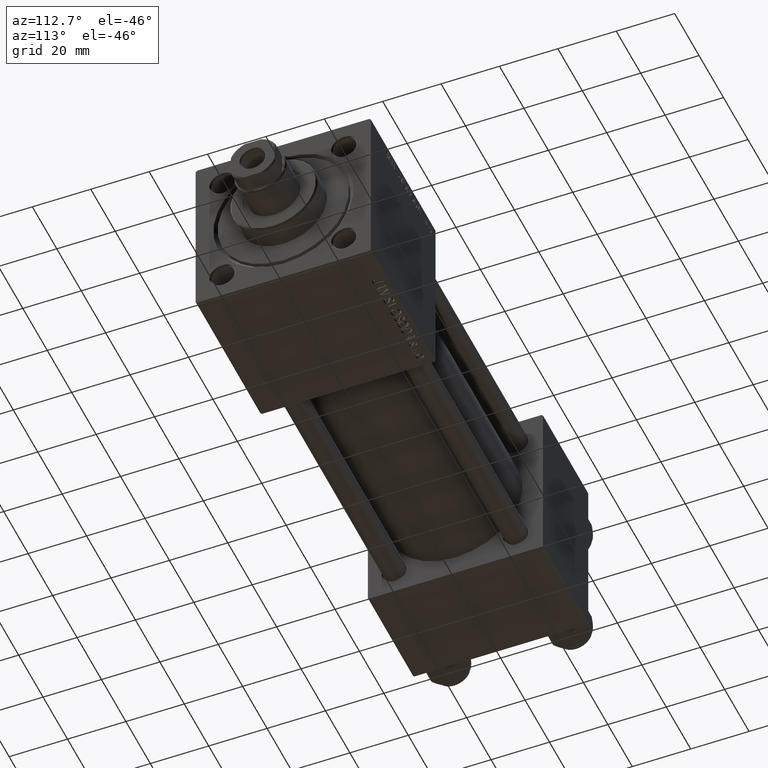
[diagram: clean part render]
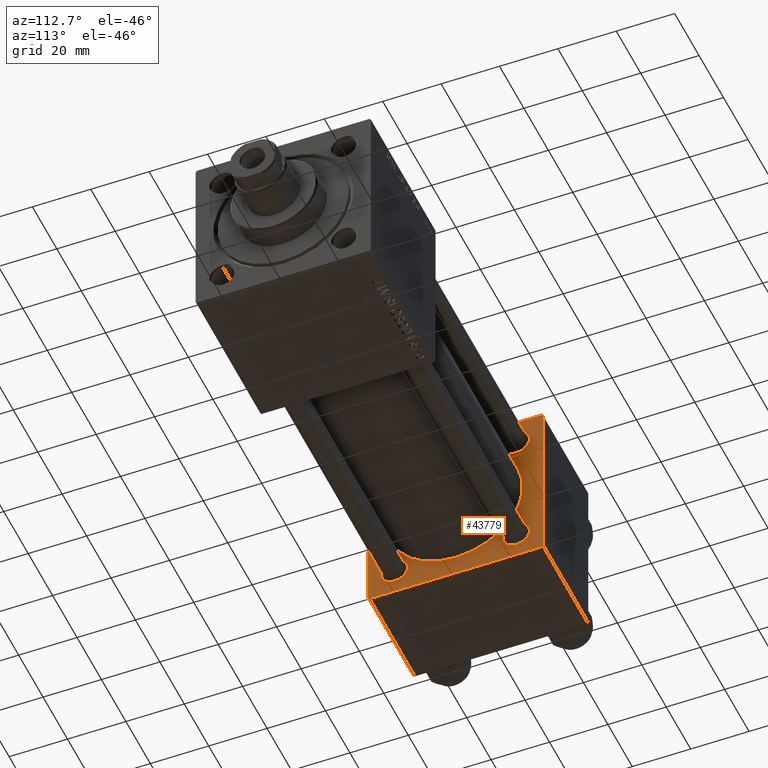
[diagram: same view with one face highlighted and labeled with its STEP entity id]
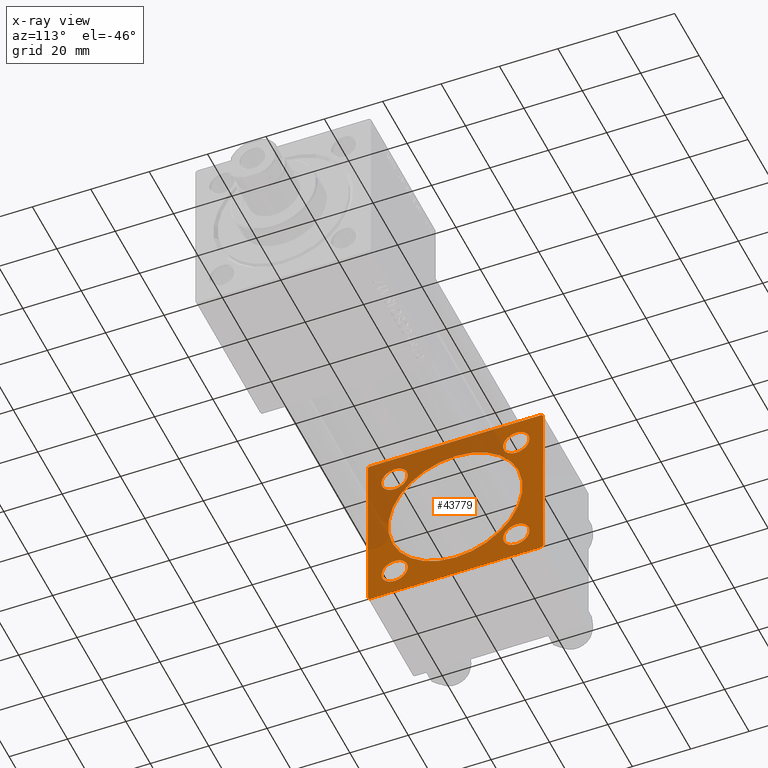
[diagram: x-ray of the same camera — body ghosted, the highlighted face saturated]
A machine part, auxiliary view. The second image highlights one B-rep face of the part: STEP entity #43779.
The next image is the same camera in x-ray: the body ghosted, the highlighted face saturated — about 36% of this face is hidden behind the body in this view.
In plain terms, the highlighted planar face has unit normal (-1, 0, 0).
Its self-contained STEP definition (entity closure, byte-faithful):
#927 = VERTEX_POINT ( 'NONE', #18639 ) ;
#1136 = CIRCLE ( 'NONE', #18986, 4.500000000000003553 ) ;
#1284 = DIRECTION ( 'NONE',  ( -0.000000000000000000, 0.7071067811865574537, 0.7071067811865376918 ) ) ;
#1488 = LINE ( 'NONE', #36266, #43400 ) ;
#1565 = FACE_OUTER_BOUND ( 'NONE', #16104, .T. ) ;
#1775 = DIRECTION ( 'NONE',  ( 0.000000000000000000, -1.000000000000000000, -1.156482317317871725E-16 ) ) ;
#2113 = VECTOR ( 'NONE', #13641, 1000.000000000000114 ) ;
#2176 = EDGE_CURVE ( 'NONE', #12660, #927, #2275, .T. ) ;
#2275 = LINE ( 'NONE', #17536, #17097 ) ;
#2717 = DIRECTION ( 'NONE',  ( 0.000000000000000000, 0.7071067811865474617, -0.7071067811865474617 ) ) ;
#3640 = VECTOR ( 'NONE', #45268, 1000.000000000000000 ) ;
#3833 = ORIENTED_EDGE ( 'NONE', *, *, #24474, .T. ) ;
#4838 = VERTEX_POINT ( 'NONE', #44101 ) ;
#5423 = EDGE_CURVE ( 'NONE', #29199, #39441, #39070, .T. ) ;
#5932 = DIRECTION ( 'NONE',  ( -1.000000000000000000, 0.000000000000000000, -0.000000000000000000 ) ) ;
#5941 = VERTEX_POINT ( 'NONE', #10081 ) ;
#6103 = CIRCLE ( 'NONE', #34474, 4.500000000000003553 ) ;
#6738 = ORIENTED_EDGE ( 'NONE', *, *, #9941, .T. ) ;
#6885 = DIRECTION ( 'NONE',  ( 1.000000000000000000, -0.000000000000000000, 0.000000000000000000 ) ) ;
#7132 = CARTESIAN_POINT ( 'NONE',  ( 37.00000000000000000, 29.99999999999999289, 29.50000000000000000 ) ) ;
#7161 = DIRECTION ( 'NONE',  ( 0.000000000000000000, 0.000000000000000000, -1.000000000000000000 ) ) ;
#7233 = ORIENTED_EDGE ( 'NONE', *, *, #28887, .T. ) ;
#7256 = DIRECTION ( 'NONE',  ( -1.000000000000000000, 0.000000000000000000, -0.000000000000000000 ) ) ;
#7270 = DIRECTION ( 'NONE',  ( -1.000000000000000000, 0.000000000000000000, -0.000000000000000000 ) ) ;
#7397 = CARTESIAN_POINT ( 'NONE',  ( 37.00000000000000000, -30.00000000000000000, 29.49999999999999289 ) ) ;
#7697 = DIRECTION ( 'NONE',  ( -1.000000000000000000, 0.000000000000000000, -0.000000000000000000 ) ) ;
#7887 = VECTOR ( 'NONE', #50105, 1000.000000000000000 ) ;
#7968 = ORIENTED_EDGE ( 'NONE', *, *, #40913, .F. ) ;
#8351 = CARTESIAN_POINT ( 'NONE',  ( 37.00000000000000000, -20.84999999999999076, 20.85000000000000497 ) ) ;
#8683 = VERTEX_POINT ( 'NONE', #47645 ) ;
#8855 = DIRECTION ( 'NONE',  ( -1.000000000000000000, 0.000000000000000000, -0.000000000000000000 ) ) ;
#8946 = FACE_BOUND ( 'NONE', #13303, .T. ) ;
#9249 = VERTEX_POINT ( 'NONE', #14420 ) ;
#9458 = ORIENTED_EDGE ( 'NONE', *, *, #16883, .T. ) ;
#9941 = EDGE_CURVE ( 'NONE', #12660, #14444, #27717, .T. ) ;
#10081 = CARTESIAN_POINT ( 'NONE',  ( 37.00000000000000711, -2.602085213965210642E-15, 23.00000000000000000 ) ) ;
#10226 = CARTESIAN_POINT ( 'NONE',  ( 37.00000000000000000, 29.99999999999999289, 30.00000000000000000 ) ) ;
#10707 = LINE ( 'NONE', #46254, #19433 ) ;
#11995 = EDGE_CURVE ( 'NONE', #29523, #8683, #45230, .T. ) ;
#12387 = CIRCLE ( 'NONE', #37533, 4.500000000000003553 ) ;
#12660 = VERTEX_POINT ( 'NONE', #15705 ) ;
#13165 = VERTEX_POINT ( 'NONE', #7397 ) ;
#13303 = EDGE_LOOP ( 'NONE', ( #42383, #3833 ) ) ;
#13523 = ORIENTED_EDGE ( 'NONE', *, *, #39783, .T. ) ;
#13579 = CARTESIAN_POINT ( 'NONE',  ( 37.00000000000000000, -20.84999999999999076, 25.35000000000000853 ) ) ;
#13599 = ORIENTED_EDGE ( 'NONE', *, *, #17170, .T. ) ;
#13641 = DIRECTION ( 'NONE',  ( 0.000000000000000000, -0.7071067811865474617, 0.7071067811865474617 ) ) ;
#13892 = CARTESIAN_POINT ( 'NONE',  ( 37.00000000000000000, 29.49999999999999289, 30.00000000000000000 ) ) ;
#14011 = DIRECTION ( 'NONE',  ( -0.000000000000000000, 0.000000000000000000, 1.000000000000000000 ) ) ;
#14272 = CARTESIAN_POINT ( 'NONE',  ( 37.00000000000000000, 29.99999999999999289, -29.50000000000000000 ) ) ;
#14420 = CARTESIAN_POINT ( 'NONE',  ( 37.00000000000000000, -20.84999999999999076, 16.35000000000000142 ) ) ;
#14444 = VERTEX_POINT ( 'NONE', #14272 ) ;
#14767 = CARTESIAN_POINT ( 'NONE',  ( 37.00000000000000711, -2.602085213965210642E-15, 0.000000000000000000 ) ) ;
#15265 = DIRECTION ( 'NONE',  ( 0.000000000000000000, 0.000000000000000000, 1.000000000000000000 ) ) ;
#15705 = CARTESIAN_POINT ( 'NONE',  ( 37.00000000000000000, 29.49999999999997868, -30.00000000000000000 ) ) ;
#15917 = ORIENTED_EDGE ( 'NONE', *, *, #34691, .T. ) ;
#16104 = EDGE_LOOP ( 'NONE', ( #39957, #6738, #45058, #13523, #21009, #37892, #13599, #7233 ) ) ;
#16478 = VERTEX_POINT ( 'NONE', #44931 ) ;
#16883 = EDGE_CURVE ( 'NONE', #8683, #29523, #48638, .T. ) ;
#17097 = VECTOR ( 'NONE', #1775, 1000.000000000000000 ) ;
#17170 = EDGE_CURVE ( 'NONE', #13165, #26937, #10707, .T. ) ;
#17536 = CARTESIAN_POINT ( 'NONE',  ( 37.00000000000000000, 29.99999999999999289, -30.00000000000000000 ) ) ;
#17596 = VERTEX_POINT ( 'NONE', #7132 ) ;
#17642 = DIRECTION ( 'NONE',  ( 0.000000000000000000, 0.000000000000000000, 1.000000000000000000 ) ) ;
#17759 = DIRECTION ( 'NONE',  ( -0.000000000000000000, -0.7071067811865474617, -0.7071067811865474617 ) ) ;
#18158 = CARTESIAN_POINT ( 'NONE',  ( 37.00000000000000711, -2.602085213965210642E-15, 0.000000000000000000 ) ) ;
#18463 = DIRECTION ( 'NONE',  ( -1.000000000000000000, 0.000000000000000000, -0.000000000000000000 ) ) ;
#18502 = EDGE_LOOP ( 'NONE', ( #7968, #48379 ) ) ;
#18639 = CARTESIAN_POINT ( 'NONE',  ( 37.00000000000000000, -29.50000000000000000, -30.00000000000000711 ) ) ;
#18876 = CARTESIAN_POINT ( 'NONE',  ( 37.00000000000000000, 20.84999999999999787, 20.85000000000000142 ) ) ;
#18986 = AXIS2_PLACEMENT_3D ( 'NONE', #42033, #7256, #30584 ) ;
#19433 = VECTOR ( 'NONE', #7161, 1000.000000000000000 ) ;
#19815 = ORIENTED_EDGE ( 'NONE', *, *, #5423, .T. ) ;
#20359 = CARTESIAN_POINT ( 'NONE',  ( 37.00000000000000000, 29.99999999999999289, -29.50000000000000000 ) ) ;
#21009 = ORIENTED_EDGE ( 'NONE', *, *, #44389, .T. ) ;
#21509 = LINE ( 'NONE', #13892, #2113 ) ;
#21747 = EDGE_CURVE ( 'NONE', #39946, #5941, #41502, .T. ) ;
#22186 = VERTEX_POINT ( 'NONE', #13579 ) ;
#22275 = CARTESIAN_POINT ( 'NONE',  ( 37.00000000000000000, -29.50000000000001066, -30.00000000000000711 ) ) ;
#22698 = LINE ( 'NONE', #46052, #7887 ) ;
#23176 = DIRECTION ( 'NONE',  ( 0.000000000000000000, 0.000000000000000000, 1.000000000000000000 ) ) ;
#23746 = ORIENTED_EDGE ( 'NONE', *, *, #23854, .T. ) ;
#23854 = EDGE_CURVE ( 'NONE', #39441, #29199, #29387, .T. ) ;
#24474 = EDGE_CURVE ( 'NONE', #16478, #4838, #12387, .T. ) ;
#24737 = AXIS2_PLACEMENT_3D ( 'NONE', #28276, #5932, #33082 ) ;
#25217 = EDGE_LOOP ( 'NONE', ( #34849, #9458 ) ) ;
#26512 = DIRECTION ( 'NONE',  ( 0.000000000000000000, 0.000000000000000000, 1.000000000000000000 ) ) ;
#26937 = VERTEX_POINT ( 'NONE', #45927 ) ;
#27717 = LINE ( 'NONE', #20359, #36339 ) ;
#27888 = DIRECTION ( 'NONE',  ( 0.000000000000000000, 0.000000000000000000, 1.000000000000000000 ) ) ;
#28276 = CARTESIAN_POINT ( 'NONE',  ( 37.00000000000000000, -20.84999999999999076, 20.85000000000000497 ) ) ;
#28887 = EDGE_CURVE ( 'NONE', #26937, #927, #38255, .T. ) ;
#29199 = VERTEX_POINT ( 'NONE', #33997 ) ;
#29387 = CIRCLE ( 'NONE', #41573, 4.500000000000003553 ) ;
#29444 = VECTOR ( 'NONE', #2717, 1000.000000000000114 ) ;
#29523 = VERTEX_POINT ( 'NONE', #40454 ) ;
#29549 = CARTESIAN_POINT ( 'NONE',  ( 37.00000000000000000, -20.84999999999999076, -20.85000000000000497 ) ) ;
#30524 = CIRCLE ( 'NONE', #42678, 23.00000000000000000 ) ;
#30584 = DIRECTION ( 'NONE',  ( 0.000000000000000000, 0.000000000000000000, 1.000000000000000000 ) ) ;
#31544 = FACE_BOUND ( 'NONE', #38238, .T. ) ;
#31699 = EDGE_CURVE ( 'NONE', #4838, #16478, #1136, .T. ) ;
#31767 = CARTESIAN_POINT ( 'NONE',  ( 37.00000000000000000, 29.49999999999999289, 30.00000000000000000 ) ) ;
#32205 = EDGE_LOOP ( 'NONE', ( #23746, #19815 ) ) ;
#33082 = DIRECTION ( 'NONE',  ( 0.000000000000000000, 0.000000000000000000, 1.000000000000000000 ) ) ;
#33288 = FACE_BOUND ( 'NONE', #18502, .T. ) ;
#33470 = CARTESIAN_POINT ( 'NONE',  ( 37.00000000000000000, -29.49999999999998579, 29.99999999999999289 ) ) ;
#33504 = EDGE_CURVE ( 'NONE', #17596, #14444, #45018, .T. ) ;
#33662 = CARTESIAN_POINT ( 'NONE',  ( 37.00000000000000000, -20.84999999999999076, -20.85000000000000497 ) ) ;
#33679 = DIRECTION ( 'NONE',  ( 0.000000000000000000, 0.000000000000000000, 1.000000000000000000 ) ) ;
#33997 = CARTESIAN_POINT ( 'NONE',  ( 37.00000000000000000, -20.84999999999999076, -16.35000000000000142 ) ) ;
#34381 = EDGE_CURVE ( 'NONE', #22186, #9249, #46632, .T. ) ;
#34474 = AXIS2_PLACEMENT_3D ( 'NONE', #8351, #8855, #27888 ) ;
#34691 = EDGE_CURVE ( 'NONE', #9249, #22186, #6103, .T. ) ;
#34849 = ORIENTED_EDGE ( 'NONE', *, *, #11995, .T. ) ;
#36266 = CARTESIAN_POINT ( 'NONE',  ( 37.00000000000000000, -30.00000000000000000, 29.49999999999999289 ) ) ;
#36339 = VECTOR ( 'NONE', #1284, 999.9999999999998863 ) ;
#36545 = DIRECTION ( 'NONE',  ( 0.000000000000000000, 0.000000000000000000, 1.000000000000000000 ) ) ;
#36600 = DIRECTION ( 'NONE',  ( -1.000000000000000000, 0.000000000000000000, -0.000000000000000000 ) ) ;
#37492 = CARTESIAN_POINT ( 'NONE',  ( 37.00000000000000000, 20.84999999999999787, 20.85000000000000142 ) ) ;
#37533 = AXIS2_PLACEMENT_3D ( 'NONE', #47979, #39353, #36545 ) ;
#37681 = DIRECTION ( 'NONE',  ( 1.000000000000000000, -0.000000000000000000, 0.000000000000000000 ) ) ;
#37892 = ORIENTED_EDGE ( 'NONE', *, *, #38697, .T. ) ;
#38238 = EDGE_LOOP ( 'NONE', ( #15917, #45705 ) ) ;
#38255 = LINE ( 'NONE', #22275, #29444 ) ;
#38697 = EDGE_CURVE ( 'NONE', #38705, #13165, #1488, .T. ) ;
#38705 = VERTEX_POINT ( 'NONE', #33470 ) ;
#39070 = CIRCLE ( 'NONE', #39895, 4.500000000000003553 ) ;
#39103 = CARTESIAN_POINT ( 'NONE',  ( 37.00000000000000000, -20.84999999999999076, -25.35000000000000853 ) ) ;
#39353 = DIRECTION ( 'NONE',  ( -1.000000000000000000, 0.000000000000000000, -0.000000000000000000 ) ) ;
#39408 = FACE_BOUND ( 'NONE', #32205, .T. ) ;
#39441 = VERTEX_POINT ( 'NONE', #39103 ) ;
#39783 = EDGE_CURVE ( 'NONE', #17596, #48507, #21509, .T. ) ;
#39895 = AXIS2_PLACEMENT_3D ( 'NONE', #29549, #41985, #17642 ) ;
#39946 = VERTEX_POINT ( 'NONE', #43543 ) ;
#39957 = ORIENTED_EDGE ( 'NONE', *, *, #2176, .F. ) ;
#40454 = CARTESIAN_POINT ( 'NONE',  ( 37.00000000000000000, 20.84999999999999787, 16.34999999999999787 ) ) ;
#40913 = EDGE_CURVE ( 'NONE', #5941, #39946, #30524, .T. ) ;
#40921 = CARTESIAN_POINT ( 'NONE',  ( 37.00000000000000000, 0.000000000000000000, 0.000000000000000000 ) ) ;
#41167 = PLANE ( 'NONE',  #47612 ) ;
#41502 = CIRCLE ( 'NONE', #47976, 23.00000000000000000 ) ;
#41573 = AXIS2_PLACEMENT_3D ( 'NONE', #33662, #7270, #49908 ) ;
#41985 = DIRECTION ( 'NONE',  ( -1.000000000000000000, 0.000000000000000000, -0.000000000000000000 ) ) ;
#42009 = AXIS2_PLACEMENT_3D ( 'NONE', #18876, #7697, #23176 ) ;
#42033 = CARTESIAN_POINT ( 'NONE',  ( 37.00000000000000000, 20.84999999999999787, -20.85000000000000142 ) ) ;
#42383 = ORIENTED_EDGE ( 'NONE', *, *, #31699, .T. ) ;
#42678 = AXIS2_PLACEMENT_3D ( 'NONE', #18158, #37681, #26512 ) ;
#42951 = AXIS2_PLACEMENT_3D ( 'NONE', #37492, #18463, #33679 ) ;
#43230 = FACE_BOUND ( 'NONE', #25217, .T. ) ;
#43400 = VECTOR ( 'NONE', #17759, 1000.000000000000114 ) ;
#43543 = CARTESIAN_POINT ( 'NONE',  ( 37.00000000000000711, 2.146024240737016609E-16, -23.00000000000000000 ) ) ;
#43779 = ADVANCED_FACE ( 'NONE', ( #39408, #8946, #31544, #43230, #33288, #1565 ), #41167, .F. ) ;
#44101 = CARTESIAN_POINT ( 'NONE',  ( 37.00000000000000000, 20.84999999999999787, -25.35000000000000497 ) ) ;
#44389 = EDGE_CURVE ( 'NONE', #48507, #38705, #22698, .T. ) ;
#44931 = CARTESIAN_POINT ( 'NONE',  ( 37.00000000000000000, 20.84999999999999787, -16.34999999999999787 ) ) ;
#45018 = LINE ( 'NONE', #10226, #3640 ) ;
#45058 = ORIENTED_EDGE ( 'NONE', *, *, #33504, .F. ) ;
#45230 = CIRCLE ( 'NONE', #42009, 4.500000000000003553 ) ;
#45268 = DIRECTION ( 'NONE',  ( 0.000000000000000000, 0.000000000000000000, -1.000000000000000000 ) ) ;
#45705 = ORIENTED_EDGE ( 'NONE', *, *, #34381, .T. ) ;
#45927 = CARTESIAN_POINT ( 'NONE',  ( 37.00000000000000000, -30.00000000000000000, -29.50000000000001776 ) ) ;
#46052 = CARTESIAN_POINT ( 'NONE',  ( 37.00000000000000000, 29.99999999999999289, 30.00000000000000000 ) ) ;
#46254 = CARTESIAN_POINT ( 'NONE',  ( 37.00000000000000000, -30.00000000000000000, 29.99999999999999289 ) ) ;
#46632 = CIRCLE ( 'NONE', #24737, 4.500000000000003553 ) ;
#47612 = AXIS2_PLACEMENT_3D ( 'NONE', #40921, #36600, #14011 ) ;
#47645 = CARTESIAN_POINT ( 'NONE',  ( 37.00000000000000000, 20.84999999999999787, 25.35000000000000497 ) ) ;
#47976 = AXIS2_PLACEMENT_3D ( 'NONE', #14767, #6885, #15265 ) ;
#47979 = CARTESIAN_POINT ( 'NONE',  ( 37.00000000000000000, 20.84999999999999787, -20.85000000000000142 ) ) ;
#48379 = ORIENTED_EDGE ( 'NONE', *, *, #21747, .F. ) ;
#48507 = VERTEX_POINT ( 'NONE', #31767 ) ;
#48638 = CIRCLE ( 'NONE', #42951, 4.500000000000003553 ) ;
#49908 = DIRECTION ( 'NONE',  ( 0.000000000000000000, 0.000000000000000000, 1.000000000000000000 ) ) ;
#50105 = DIRECTION ( 'NONE',  ( 0.000000000000000000, -1.000000000000000000, -1.156482317317871725E-16 ) ) ;